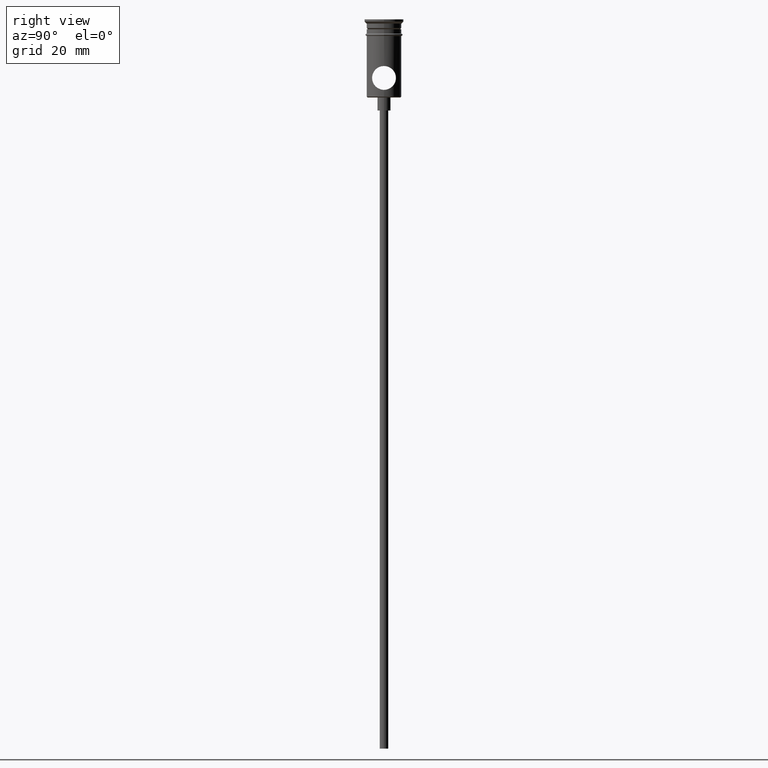
[diagram: clean part render]
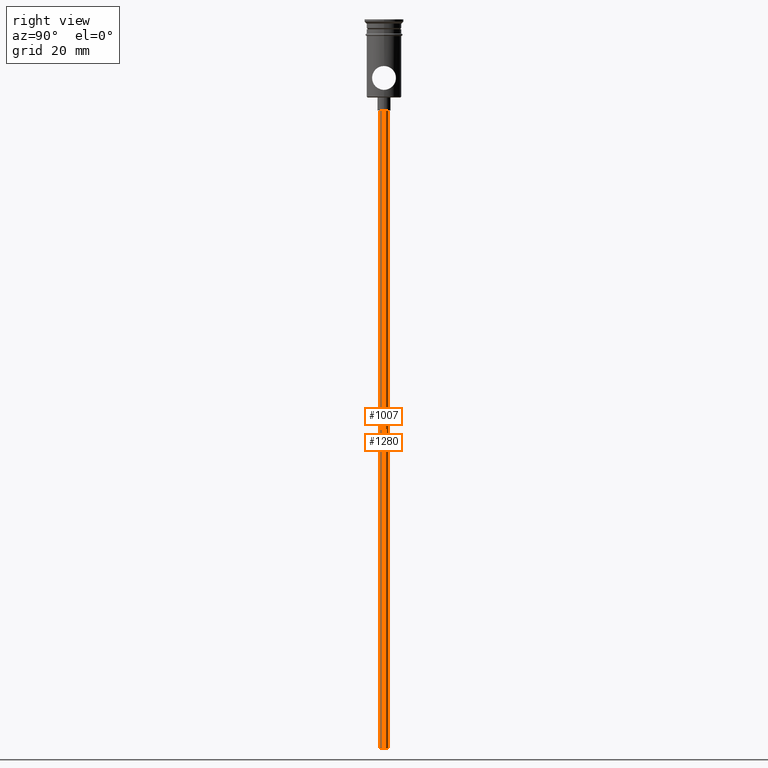
[diagram: same view with one multi-face feature highlighted, each face labeled with its STEP entity id]
A machine part, right view. The highlighted faces form ONE feature: a constant-radius fillet chain: 2 tangent blend faces with common blend radius 1 mm. The faces share edges in the B-rep.
Their STEP definitions:
[1] entity #1007 (Cylinder):
#15 = EDGE_CURVE ( 'NONE', #923, #1145, #1078, .T. ) ;
#21 = ORIENTED_EDGE ( 'NONE', *, *, #219, .T. ) ;
#22 = AXIS2_PLACEMENT_3D ( 'NONE', #173, #705, #627 ) ;
#39 = DIRECTION ( 'NONE',  ( 1.000000000000000000, 0.000000000000000000, 0.000000000000000000 ) ) ;
#58 = CARTESIAN_POINT ( 'NONE',  ( 0.9999999999999997780, 0.000000000000000000, -20.99999999999999645 ) ) ;
#170 = VERTEX_POINT ( 'NONE', #58 ) ;
#173 = CARTESIAN_POINT ( 'NONE',  ( 0.000000000000000000, 0.000000000000000000, -167.9999999999999716 ) ) ;
#219 = EDGE_CURVE ( 'NONE', #170, #1111, #577, .T. ) ;
#244 = EDGE_CURVE ( 'NONE', #923, #170, #1408, .T. ) ;
#283 = CARTESIAN_POINT ( 'NONE',  ( 0.9999999999999997780, 0.000000000000000000, -167.9999999999999716 ) ) ;
#341 = ORIENTED_EDGE ( 'NONE', *, *, #244, .T. ) ;
#367 = DIRECTION ( 'NONE',  ( -0.000000000000000000, -0.000000000000000000, 1.000000000000000000 ) ) ;
#409 = VECTOR ( 'NONE', #410, 1000.000000000000000 ) ;
#410 = DIRECTION ( 'NONE',  ( -0.000000000000000000, -0.000000000000000000, 1.000000000000000000 ) ) ;
#524 = CARTESIAN_POINT ( 'NONE',  ( -0.9999999999999997780, 1.224646799147352961E-16, -167.9999999999999716 ) ) ;
#528 = CARTESIAN_POINT ( 'NONE',  ( -0.9999999999999997780, 1.224646799147352961E-16, -167.9999999999999716 ) ) ;
#577 = CIRCLE ( 'NONE', #712, 0.9999999999999997780 ) ;
#603 = VECTOR ( 'NONE', #846, 1000.000000000000000 ) ;
#627 = DIRECTION ( 'NONE',  ( -1.000000000000000000, 0.000000000000000000, 0.000000000000000000 ) ) ;
#629 = CARTESIAN_POINT ( 'NONE',  ( -0.9999999999999997780, 1.224646799147352961E-16, -20.99999999999999645 ) ) ;
#658 = EDGE_CURVE ( 'NONE', #1145, #1111, #1043, .T. ) ;
#705 = DIRECTION ( 'NONE',  ( 0.000000000000000000, 0.000000000000000000, -1.000000000000000000 ) ) ;
#707 = CYLINDRICAL_SURFACE ( 'NONE', #1008, 0.9999999999999997780 ) ;
#712 = AXIS2_PLACEMENT_3D ( 'NONE', #1074, #1283, #1050 ) ;
#846 = DIRECTION ( 'NONE',  ( -0.000000000000000000, -0.000000000000000000, 1.000000000000000000 ) ) ;
#923 = VERTEX_POINT ( 'NONE', #283 ) ;
#954 = CARTESIAN_POINT ( 'NONE',  ( 0.9999999999999997780, 0.000000000000000000, -167.9999999999999716 ) ) ;
#1007 = ADVANCED_FACE ( 'NONE', ( #1376 ), #707, .T. ) ;
#1008 = AXIS2_PLACEMENT_3D ( 'NONE', #1343, #367, #39 ) ;
#1043 = LINE ( 'NONE', #524, #409 ) ;
#1050 = DIRECTION ( 'NONE',  ( -1.000000000000000000, 0.000000000000000000, 0.000000000000000000 ) ) ;
#1074 = CARTESIAN_POINT ( 'NONE',  ( 0.000000000000000000, 0.000000000000000000, -20.99999999999999645 ) ) ;
#1076 = ORIENTED_EDGE ( 'NONE', *, *, #15, .F. ) ;
#1078 = CIRCLE ( 'NONE', #22, 0.9999999999999997780 ) ;
#1111 = VERTEX_POINT ( 'NONE', #629 ) ;
#1113 = EDGE_LOOP ( 'NONE', ( #1414, #1076, #341, #21 ) ) ;
#1145 = VERTEX_POINT ( 'NONE', #528 ) ;
#1283 = DIRECTION ( 'NONE',  ( 0.000000000000000000, 0.000000000000000000, -1.000000000000000000 ) ) ;
#1343 = CARTESIAN_POINT ( 'NONE',  ( 0.000000000000000000, 0.000000000000000000, -167.9999999999999716 ) ) ;
#1376 = FACE_OUTER_BOUND ( 'NONE', #1113, .T. ) ;
#1408 = LINE ( 'NONE', #954, #603 ) ;
#1414 = ORIENTED_EDGE ( 'NONE', *, *, #658, .F. ) ;
[2] entity #1280 (Cylinder):
#4 = FACE_OUTER_BOUND ( 'NONE', #1407, .T. ) ;
#47 = CIRCLE ( 'NONE', #1344, 0.9999999999999997780 ) ;
#58 = CARTESIAN_POINT ( 'NONE',  ( 0.9999999999999997780, 0.000000000000000000, -20.99999999999999645 ) ) ;
#129 = CARTESIAN_POINT ( 'NONE',  ( 0.000000000000000000, 0.000000000000000000, -167.9999999999999716 ) ) ;
#170 = VERTEX_POINT ( 'NONE', #58 ) ;
#233 = DIRECTION ( 'NONE',  ( 1.000000000000000000, 0.000000000000000000, 0.000000000000000000 ) ) ;
#244 = EDGE_CURVE ( 'NONE', #923, #170, #1408, .T. ) ;
#269 = DIRECTION ( 'NONE',  ( -1.000000000000000000, 0.000000000000000000, 0.000000000000000000 ) ) ;
#283 = CARTESIAN_POINT ( 'NONE',  ( 0.9999999999999997780, 0.000000000000000000, -167.9999999999999716 ) ) ;
#346 = ORIENTED_EDGE ( 'NONE', *, *, #436, .T. ) ;
#409 = VECTOR ( 'NONE', #410, 1000.000000000000000 ) ;
#410 = DIRECTION ( 'NONE',  ( -0.000000000000000000, -0.000000000000000000, 1.000000000000000000 ) ) ;
#436 = EDGE_CURVE ( 'NONE', #1111, #170, #47, .T. ) ;
#524 = CARTESIAN_POINT ( 'NONE',  ( -0.9999999999999997780, 1.224646799147352961E-16, -167.9999999999999716 ) ) ;
#528 = CARTESIAN_POINT ( 'NONE',  ( -0.9999999999999997780, 1.224646799147352961E-16, -167.9999999999999716 ) ) ;
#595 = DIRECTION ( 'NONE',  ( -1.000000000000000000, 0.000000000000000000, 0.000000000000000000 ) ) ;
#603 = VECTOR ( 'NONE', #846, 1000.000000000000000 ) ;
#607 = AXIS2_PLACEMENT_3D ( 'NONE', #1021, #921, #595 ) ;
#629 = CARTESIAN_POINT ( 'NONE',  ( -0.9999999999999997780, 1.224646799147352961E-16, -20.99999999999999645 ) ) ;
#639 = ORIENTED_EDGE ( 'NONE', *, *, #244, .F. ) ;
#658 = EDGE_CURVE ( 'NONE', #1145, #1111, #1043, .T. ) ;
#774 = CARTESIAN_POINT ( 'NONE',  ( 0.000000000000000000, 0.000000000000000000, -20.99999999999999645 ) ) ;
#846 = DIRECTION ( 'NONE',  ( -0.000000000000000000, -0.000000000000000000, 1.000000000000000000 ) ) ;
#857 = CYLINDRICAL_SURFACE ( 'NONE', #1121, 0.9999999999999997780 ) ;
#860 = ORIENTED_EDGE ( 'NONE', *, *, #658, .T. ) ;
#921 = DIRECTION ( 'NONE',  ( 0.000000000000000000, 0.000000000000000000, -1.000000000000000000 ) ) ;
#923 = VERTEX_POINT ( 'NONE', #283 ) ;
#954 = CARTESIAN_POINT ( 'NONE',  ( 0.9999999999999997780, 0.000000000000000000, -167.9999999999999716 ) ) ;
#968 = EDGE_CURVE ( 'NONE', #1145, #923, #1249, .T. ) ;
#1021 = CARTESIAN_POINT ( 'NONE',  ( 0.000000000000000000, 0.000000000000000000, -167.9999999999999716 ) ) ;
#1043 = LINE ( 'NONE', #524, #409 ) ;
#1111 = VERTEX_POINT ( 'NONE', #629 ) ;
#1121 = AXIS2_PLACEMENT_3D ( 'NONE', #129, #1308, #233 ) ;
#1145 = VERTEX_POINT ( 'NONE', #528 ) ;
#1215 = DIRECTION ( 'NONE',  ( 0.000000000000000000, 0.000000000000000000, -1.000000000000000000 ) ) ;
#1249 = CIRCLE ( 'NONE', #607, 0.9999999999999997780 ) ;
#1280 = ADVANCED_FACE ( 'NONE', ( #4 ), #857, .T. ) ;
#1308 = DIRECTION ( 'NONE',  ( -0.000000000000000000, -0.000000000000000000, 1.000000000000000000 ) ) ;
#1318 = ORIENTED_EDGE ( 'NONE', *, *, #968, .F. ) ;
#1344 = AXIS2_PLACEMENT_3D ( 'NONE', #774, #1215, #269 ) ;
#1407 = EDGE_LOOP ( 'NONE', ( #1318, #860, #346, #639 ) ) ;
#1408 = LINE ( 'NONE', #954, #603 ) ;